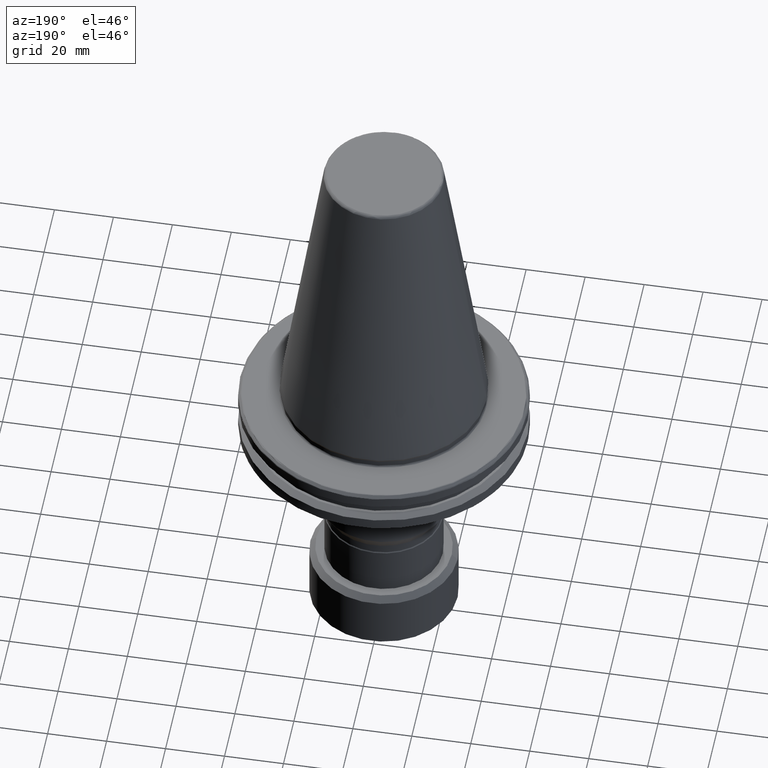
[diagram: clean part render]
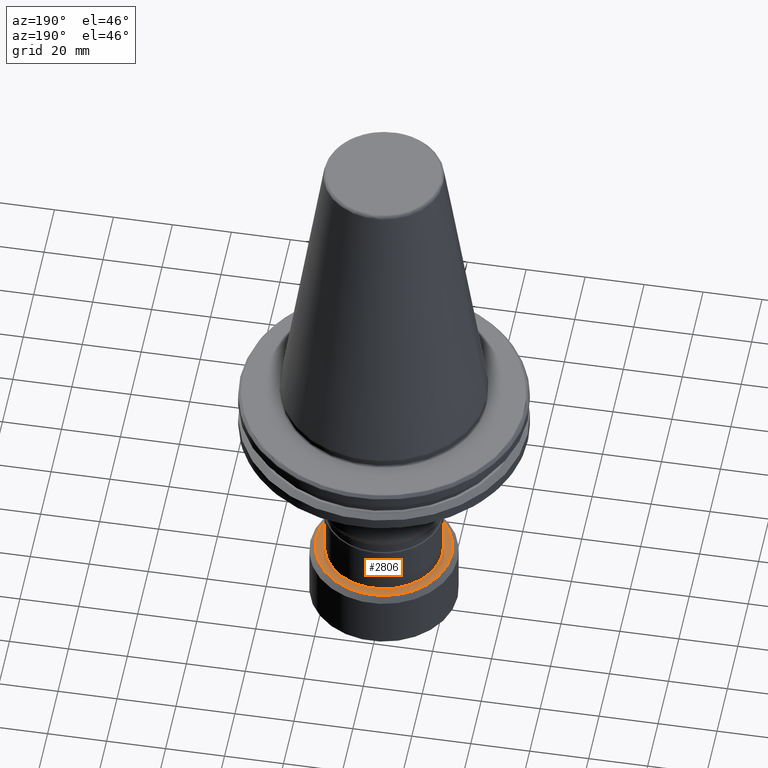
[diagram: same view with one face highlighted and labeled with its STEP entity id]
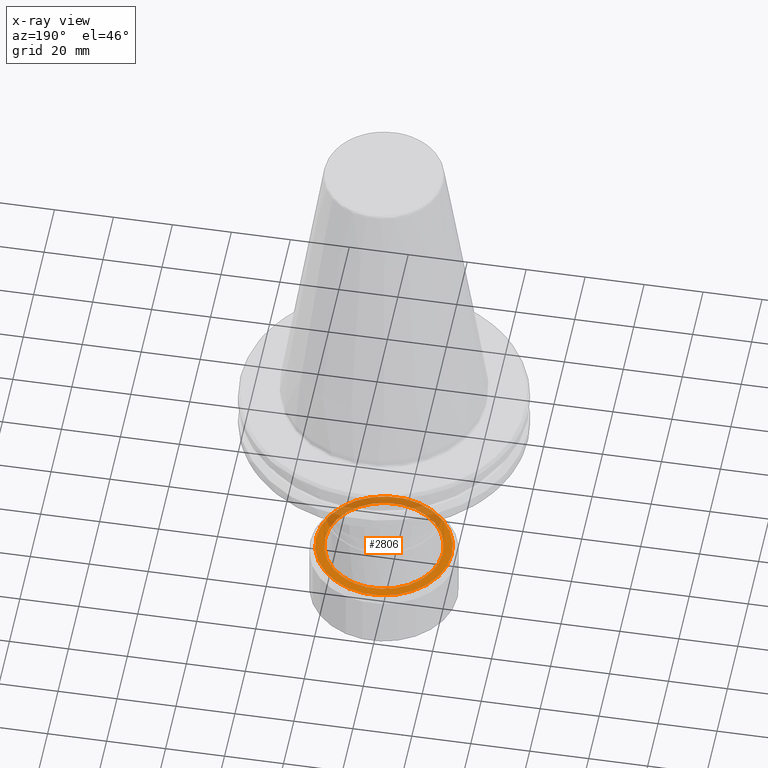
[diagram: x-ray of the same camera — body ghosted, the highlighted face saturated]
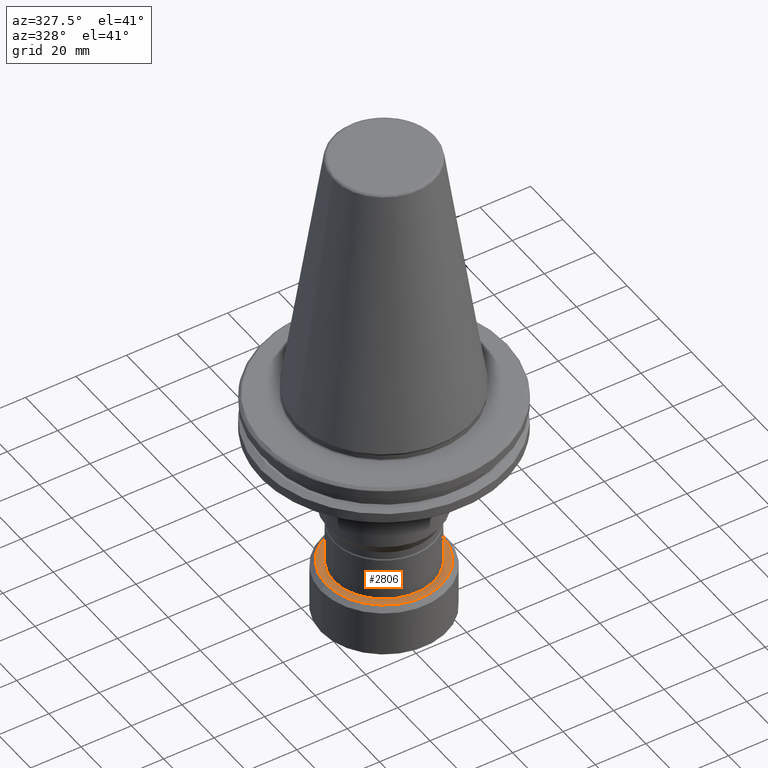
[diagram: same view with one face highlighted and labeled with its STEP entity id]
A machine part, auxiliary view. The second image highlights one B-rep face of the part: STEP entity #2806.
The next image is the same camera in x-ray: the body ghosted, the highlighted face saturated — about 34% of this face is hidden behind the body in this view.
A second angle (auxiliary view) of the same face is appended — the face is thin or edge-on in the first view.
In plain terms, the highlighted planar face has unit normal (0, 0, -1).
Its self-contained STEP definition (entity closure, byte-faithful):
#42 = AXIS2_PLACEMENT_3D ( 'NONE', #934, #2833, #1217 ) ;
#58 = DIRECTION ( 'NONE',  ( 1.000000000000000000, 0.0000000000000000000, 0.0000000000000000000 ) ) ;
#103 = VERTEX_POINT ( 'NONE', #935 ) ;
#222 = EDGE_CURVE ( 'NONE', #1011, #418, #1092, .T. ) ;
#362 = DIRECTION ( 'NONE',  ( 0.0000000000000000000, 0.0000000000000000000, -1.000000000000000000 ) ) ;
#418 = VERTEX_POINT ( 'NONE', #1920 ) ;
#646 = EDGE_LOOP ( 'NONE', ( #1035, #3026 ) ) ;
#801 = EDGE_CURVE ( 'NONE', #418, #1011, #1943, .T. ) ;
#934 = CARTESIAN_POINT ( 'NONE',  ( 0.0000000000000000000, 0.0000000000000000000, -77.00000000000000000 ) ) ;
#935 = CARTESIAN_POINT ( 'NONE',  ( 19.94999999999998900, 0.0000000000000000000, -77.00000000000000000 ) ) ;
#1011 = VERTEX_POINT ( 'NONE', #1465 ) ;
#1035 = ORIENTED_EDGE ( 'NONE', *, *, #801, .F. ) ;
#1059 = DIRECTION ( 'NONE',  ( -1.000000000000000000, 0.0000000000000000000, 0.0000000000000000000 ) ) ;
#1064 = DIRECTION ( 'NONE',  ( 0.0000000000000000000, 0.0000000000000000000, -1.000000000000000000 ) ) ;
#1071 = CARTESIAN_POINT ( 'NONE',  ( 0.0000000000000000000, 0.0000000000000000000, -77.00000000000001400 ) ) ;
#1086 = CIRCLE ( 'NONE', #42, 19.94999999999998900 ) ;
#1092 = CIRCLE ( 'NONE', #1329, 23.00000000000000000 ) ;
#1217 = DIRECTION ( 'NONE',  ( 1.000000000000000000, 0.0000000000000000000, 0.0000000000000000000 ) ) ;
#1245 = CARTESIAN_POINT ( 'NONE',  ( -19.94999999999998900, 2.443170364298968300E-015, -77.00000000000000000 ) ) ;
#1297 = AXIS2_PLACEMENT_3D ( 'NONE', #3332, #2963, #58 ) ;
#1324 = DIRECTION ( 'NONE',  ( 0.0000000000000000000, 0.0000000000000000000, -1.000000000000000000 ) ) ;
#1329 = AXIS2_PLACEMENT_3D ( 'NONE', #2007, #362, #2272 ) ;
#1465 = CARTESIAN_POINT ( 'NONE',  ( 23.00000000000000000, 2.939152317953647900E-015, -77.00000000000001400 ) ) ;
#1870 = CARTESIAN_POINT ( 'NONE',  ( 0.0000000000000000000, 0.0000000000000000000, -77.00000000000001400 ) ) ;
#1876 = AXIS2_PLACEMENT_3D ( 'NONE', #1870, #1324, #3182 ) ;
#1920 = CARTESIAN_POINT ( 'NONE',  ( -23.00000000000000000, 0.0000000000000000000, -77.00000000000001400 ) ) ;
#1943 = CIRCLE ( 'NONE', #2947, 23.00000000000000000 ) ;
#2007 = CARTESIAN_POINT ( 'NONE',  ( 0.0000000000000000000, 0.0000000000000000000, -77.00000000000001400 ) ) ;
#2065 = VERTEX_POINT ( 'NONE', #1245 ) ;
#2272 = DIRECTION ( 'NONE',  ( -1.000000000000000000, 0.0000000000000000000, 0.0000000000000000000 ) ) ;
#2286 = EDGE_LOOP ( 'NONE', ( #3052, #3419 ) ) ;
#2349 = EDGE_CURVE ( 'NONE', #103, #2065, #2952, .T. ) ;
#2535 = FACE_OUTER_BOUND ( 'NONE', #646, .T. ) ;
#2691 = FACE_BOUND ( 'NONE', #2286, .T. ) ;
#2806 = ADVANCED_FACE ( 'NONE', ( #2691, #2535 ), #2932, .F. ) ;
#2833 = DIRECTION ( 'NONE',  ( 0.0000000000000000000, 0.0000000000000000000, 1.000000000000000000 ) ) ;
#2932 = PLANE ( 'NONE',  #1876 ) ;
#2947 = AXIS2_PLACEMENT_3D ( 'NONE', #1071, #1064, #1059 ) ;
#2952 = CIRCLE ( 'NONE', #1297, 19.94999999999998900 ) ;
#2963 = DIRECTION ( 'NONE',  ( 0.0000000000000000000, 0.0000000000000000000, 1.000000000000000000 ) ) ;
#3026 = ORIENTED_EDGE ( 'NONE', *, *, #222, .F. ) ;
#3052 = ORIENTED_EDGE ( 'NONE', *, *, #2349, .F. ) ;
#3182 = DIRECTION ( 'NONE',  ( -1.000000000000000000, 0.0000000000000000000, -0.0000000000000000000 ) ) ;
#3332 = CARTESIAN_POINT ( 'NONE',  ( 0.0000000000000000000, 0.0000000000000000000, -77.00000000000000000 ) ) ;
#3365 = EDGE_CURVE ( 'NONE', #2065, #103, #1086, .T. ) ;
#3419 = ORIENTED_EDGE ( 'NONE', *, *, #3365, .F. ) ;